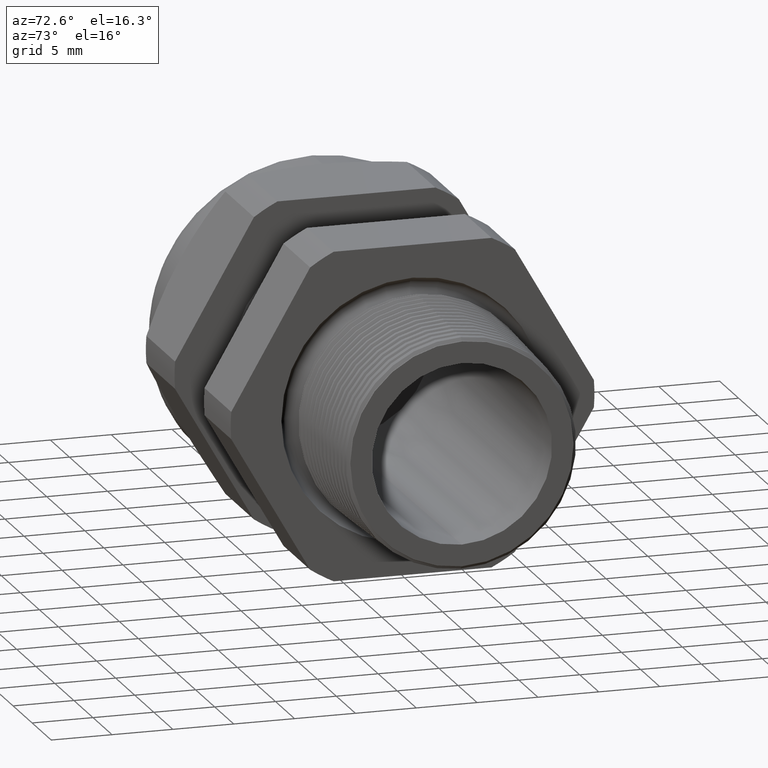
[diagram: clean part render]
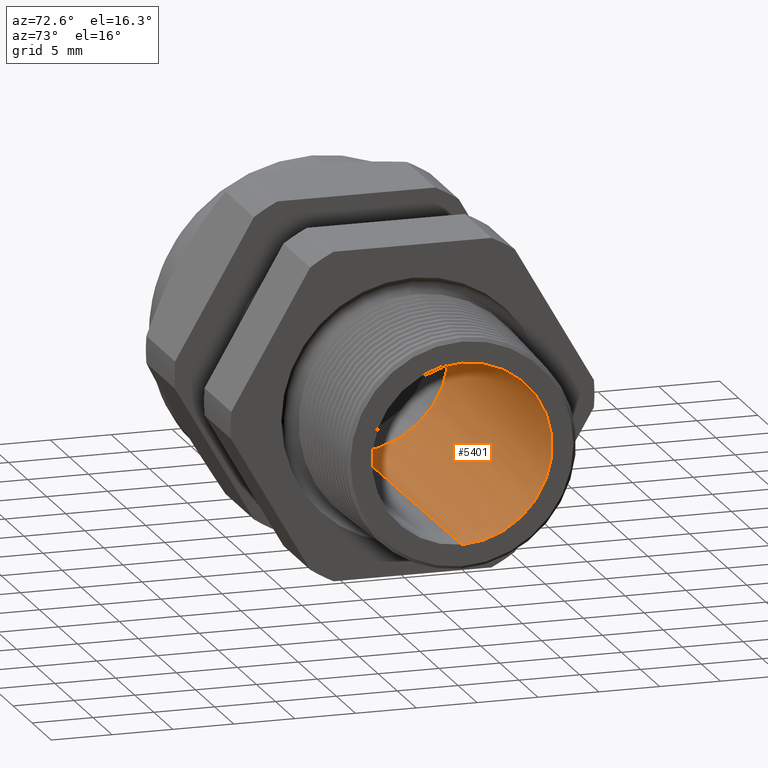
[diagram: same view with one face highlighted and labeled with its STEP entity id]
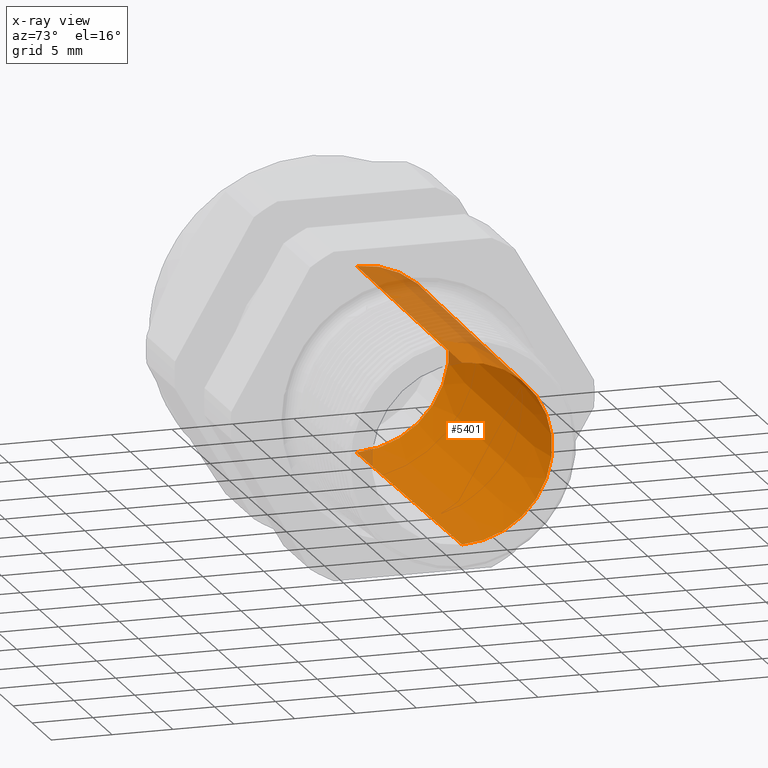
[diagram: x-ray of the same camera — body ghosted, the highlighted face saturated]
A machine part, auxiliary view. The second image highlights one B-rep face of the part: STEP entity #5401.
The next image is the same camera in x-ray: the body ghosted, the highlighted face saturated — about 13% of this face is hidden behind the body in this view.
In plain terms, the highlighted conical surface has half-angle 0.424 deg.
Its self-contained STEP definition (entity closure, byte-faithful):
#1856 = DIRECTION ( 'NONE',  ( 0.0000000000000000000, 0.0000000000000000000, -1.000000000000000000 ) ) ;
#1857 = DIRECTION ( 'NONE',  ( 1.000000000000000000, 0.0000000000000000000, 0.0000000000000000000 ) ) ;
#1858 = CARTESIAN_POINT ( 'NONE',  ( 0.2000000000000000400, 0.0000000000000000000, 0.0000000000000000000 ) ) ;
#1859 = AXIS2_PLACEMENT_3D ( 'NONE', #1858, #1857, #1856 ) ;
#1864 = CIRCLE ( 'NONE', #1859, 0.2919253625864463600 ) ;
#1886 = CIRCLE ( 'NONE', #1949, 0.2999999999999999900 ) ;
#1940 = DIRECTION ( 'NONE',  ( 0.0000000000000000000, 0.0000000000000000000, 1.000000000000000000 ) ) ;
#1941 = DIRECTION ( 'NONE',  ( -1.000000000000000000, 0.0000000000000000000, 0.0000000000000000000 ) ) ;
#1942 = AXIS2_PLACEMENT_3D ( 'NONE', #1945, #1941, #1940 ) ;
#1943 = CONICAL_SURFACE ( 'NONE', #1942, 0.2999999999999999900, 0.007405648909184165400 ) ;
#1945 = CARTESIAN_POINT ( 'NONE',  ( -0.8903149606299211000, 0.0000000000000000000, 0.0000000000000000000 ) ) ;
#1946 = DIRECTION ( 'NONE',  ( 0.0000000000000000000, 0.0000000000000000000, -1.000000000000000000 ) ) ;
#1947 = DIRECTION ( 'NONE',  ( 1.000000000000000000, 0.0000000000000000000, 0.0000000000000000000 ) ) ;
#1948 = CARTESIAN_POINT ( 'NONE',  ( -0.8903149606299211000, 0.0000000000000000000, 0.0000000000000000000 ) ) ;
#1949 = AXIS2_PLACEMENT_3D ( 'NONE', #1948, #1947, #1946 ) ;
#1950 = FACE_OUTER_BOUND ( 'NONE', #5400, .T. ) ;
#2472 = VERTEX_POINT ( 'NONE', #4148 ) ;
#2477 = VERTEX_POINT ( 'NONE', #4137 ) ;
#2479 = EDGE_CURVE ( 'NONE', #2480, #2482, #4136, .T. ) ;
#2480 = VERTEX_POINT ( 'NONE', #4132 ) ;
#2482 = VERTEX_POINT ( 'NONE', #4131 ) ;
#2500 = EDGE_CURVE ( 'NONE', #2477, #2472, #4159, .T. ) ;
#4131 = CARTESIAN_POINT ( 'NONE',  ( -0.8903149606299211000, 0.0000000000000000000, -0.2999999999999999900 ) ) ;
#4132 = CARTESIAN_POINT ( 'NONE',  ( 0.2000000000000000400, 3.624497503128140000E-017, -0.2919253625864463600 ) ) ;
#4133 = DIRECTION ( 'NONE',  ( -0.9999725783074426800, 9.069221333532471100E-019, -0.007405581217251224400 ) ) ;
#4134 = VECTOR ( 'NONE', #4133, 39.37007874015748900 ) ;
#4135 = CARTESIAN_POINT ( 'NONE',  ( -0.8903149606299211000, 3.673940397442058900E-017, -0.2999999999999999900 ) ) ;
#4136 = LINE ( 'NONE', #4135, #4134 ) ;
#4137 = CARTESIAN_POINT ( 'NONE',  ( 0.2000000000000000400, 0.0000000000000000000, 0.2919253625864463600 ) ) ;
#4148 = CARTESIAN_POINT ( 'NONE',  ( -0.8903149606299211000, 3.673940397442058900E-017, 0.2999999999999999900 ) ) ;
#4156 = DIRECTION ( 'NONE',  ( -0.9999725783074426800, 0.0000000000000000000, 0.007405581217251224400 ) ) ;
#4157 = VECTOR ( 'NONE', #4156, 39.37007874015748900 ) ;
#4158 = CARTESIAN_POINT ( 'NONE',  ( -0.8903149606299211000, 0.0000000000000000000, 0.2999999999999999900 ) ) ;
#4159 = LINE ( 'NONE', #4158, #4157 ) ;
#5382 = EDGE_CURVE ( 'NONE', #2480, #2477, #1864, .T. ) ;
#5384 = ORIENTED_EDGE ( 'NONE', *, *, #5382, .T. ) ;
#5397 = ORIENTED_EDGE ( 'NONE', *, *, #2479, .F. ) ;
#5399 = EDGE_CURVE ( 'NONE', #2482, #2472, #1886, .T. ) ;
#5400 = EDGE_LOOP ( 'NONE', ( #5397, #5384, #5468, #5453 ) ) ;
#5401 = ADVANCED_FACE ( 'NONE', ( #1950 ), #1943, .F. ) ;
#5453 = ORIENTED_EDGE ( 'NONE', *, *, #5399, .F. ) ;
#5468 = ORIENTED_EDGE ( 'NONE', *, *, #2500, .T. ) ;